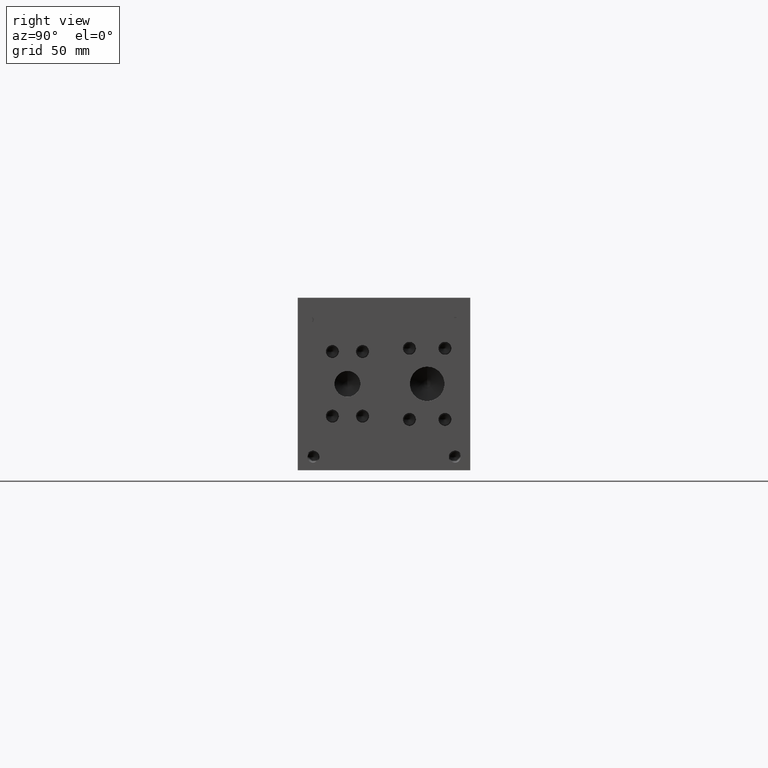
[diagram: clean part render]
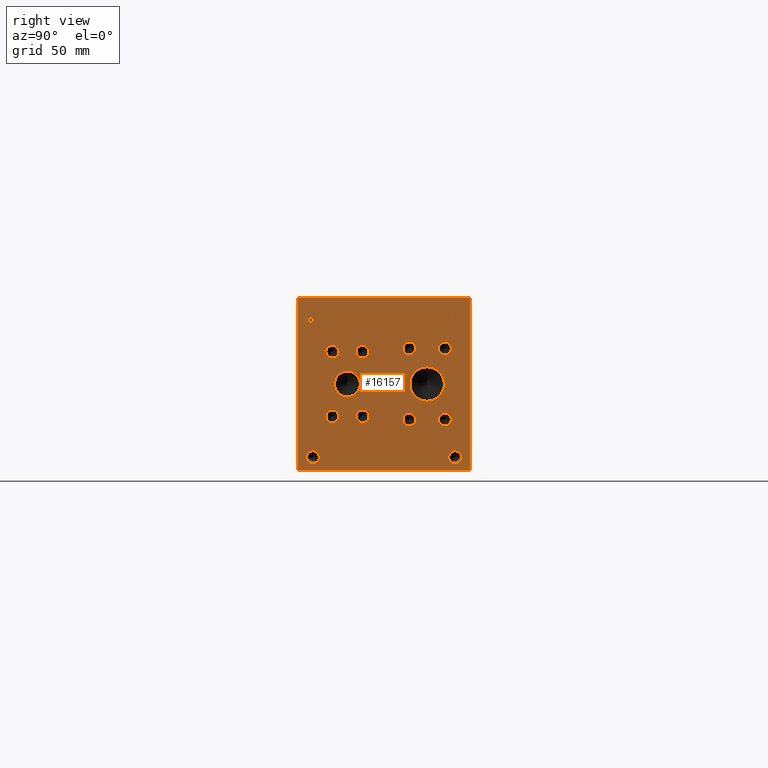
[diagram: same view with one face highlighted and labeled with its STEP entity id]
A machine part, right view. The second image highlights one B-rep face of the part: STEP entity #16157.
In plain terms, the highlighted planar face has unit normal (1, 0, 0).
Its self-contained STEP definition (entity closure, byte-faithful):
#523=CIRCLE('',#17117,9.525);
#524=CIRCLE('',#17118,9.525);
#525=CIRCLE('',#17119,4.7625);
#526=CIRCLE('',#17120,4.7625);
#527=CIRCLE('',#17121,4.7625);
#528=CIRCLE('',#17122,4.7625);
#529=CIRCLE('',#17123,4.7625);
#530=CIRCLE('',#17124,4.7625);
#531=CIRCLE('',#17125,4.7625);
#532=CIRCLE('',#17126,4.7625);
#533=CIRCLE('',#17127,4.7625);
#534=CIRCLE('',#17128,4.7625);
#535=CIRCLE('',#17129,4.7625);
#536=CIRCLE('',#17130,4.7625);
#537=CIRCLE('',#17131,4.7625);
#538=CIRCLE('',#17132,4.7625);
#539=CIRCLE('',#17133,4.7625);
#540=CIRCLE('',#17134,4.7625);
#541=CIRCLE('',#17135,12.7);
#542=CIRCLE('',#17136,12.7);
#543=CIRCLE('',#17137,4.7625);
#544=CIRCLE('',#17138,4.7625);
#545=CIRCLE('',#17139,4.7625);
#546=CIRCLE('',#17140,4.7625);
#1161=B_SPLINE_CURVE_WITH_KNOTS('',2,(#23960,#23961,#23962,#23963),
 .UNSPECIFIED.,.F.,.F.,(3,1,3),(0.,1.,2.),.UNSPECIFIED.);
#1163=B_SPLINE_CURVE_WITH_KNOTS('',2,(#23981,#23982,#23983,#23984),
 .UNSPECIFIED.,.F.,.F.,(3,1,3),(0.,1.,2.),.UNSPECIFIED.);
#1165=B_SPLINE_CURVE_WITH_KNOTS('',2,(#24030,#24031,#24032,#24033),
 .UNSPECIFIED.,.F.,.F.,(3,1,3),(0.,1.,2.),.UNSPECIFIED.);
#1167=B_SPLINE_CURVE_WITH_KNOTS('',2,(#24048,#24049,#24050,#24051),
 .UNSPECIFIED.,.F.,.F.,(3,1,3),(0.,1.,2.),.UNSPECIFIED.);
#1441=FACE_BOUND('',#2617,.T.);
#1442=FACE_BOUND('',#2618,.T.);
#1443=FACE_BOUND('',#2619,.T.);
#1444=FACE_BOUND('',#2620,.T.);
#1445=FACE_BOUND('',#2621,.T.);
#1446=FACE_BOUND('',#2622,.T.);
#1447=FACE_BOUND('',#2623,.T.);
#1448=FACE_BOUND('',#2624,.T.);
#1449=FACE_BOUND('',#2625,.T.);
#1450=FACE_BOUND('',#2626,.T.);
#1451=FACE_BOUND('',#2627,.T.);
#1452=FACE_BOUND('',#2628,.T.);
#1453=FACE_BOUND('',#2629,.T.);
#1454=FACE_BOUND('',#2630,.T.);
#1657=FACE_OUTER_BOUND('',#2616,.T.);
#2616=EDGE_LOOP('',(#11145,#11146,#11147,#11148));
#2617=EDGE_LOOP('',(#11149,#11150,#11151,#11152,#11153,#11154,#11155,#11156));
#2618=EDGE_LOOP('',(#11157,#11158));
#2619=EDGE_LOOP('',(#11159,#11160));
#2620=EDGE_LOOP('',(#11161,#11162));
#2621=EDGE_LOOP('',(#11163,#11164));
#2622=EDGE_LOOP('',(#11165,#11166));
#2623=EDGE_LOOP('',(#11167,#11168));
#2624=EDGE_LOOP('',(#11169,#11170));
#2625=EDGE_LOOP('',(#11171,#11172));
#2626=EDGE_LOOP('',(#11173,#11174));
#2627=EDGE_LOOP('',(#11175,#11176));
#2628=EDGE_LOOP('',(#11177,#11178));
#2629=EDGE_LOOP('',(#11179,#11180));
#2630=EDGE_LOOP('',(#11181,#11182,#11183,#11184,#11185,#11186,#11187,#11188,
#11189));
#3619=LINE('',#22472,#5033);
#3890=LINE('',#23810,#5304);
#3894=LINE('',#23818,#5308);
#3897=LINE('',#23824,#5311);
#3900=LINE('',#23830,#5314);
#3903=LINE('',#23836,#5317);
#3906=LINE('',#23842,#5320);
#3909=LINE('',#23848,#5323);
#3912=LINE('',#23853,#5326);
#3930=LINE('',#23993,#5344);
#3933=LINE('',#23999,#5347);
#3936=LINE('',#24005,#5350);
#3939=LINE('',#24011,#5353);
#3942=LINE('',#24017,#5356);
#3946=LINE('',#24059,#5360);
#3947=LINE('',#24061,#5361);
#3948=LINE('',#24062,#5362);
#5033=VECTOR('',#18383,10.);
#5304=VECTOR('',#18846,10.);
#5308=VECTOR('',#18852,10.);
#5311=VECTOR('',#18857,10.);
#5314=VECTOR('',#18862,10.);
#5317=VECTOR('',#18867,10.);
#5320=VECTOR('',#18872,10.);
#5323=VECTOR('',#18877,10.);
#5326=VECTOR('',#18882,10.);
#5344=VECTOR('',#18910,10.);
#5347=VECTOR('',#18915,10.);
#5350=VECTOR('',#18920,10.);
#5353=VECTOR('',#18925,10.);
#5356=VECTOR('',#18930,10.);
#5360=VECTOR('',#18938,10.);
#5361=VECTOR('',#18939,10.);
#5362=VECTOR('',#18940,10.);
#6436=VERTEX_POINT('',#22469);
#6437=VERTEX_POINT('',#22471);
#6871=VERTEX_POINT('',#23808);
#6872=VERTEX_POINT('',#23809);
#6875=VERTEX_POINT('',#23817);
#6877=VERTEX_POINT('',#23823);
#6879=VERTEX_POINT('',#23829);
#6881=VERTEX_POINT('',#23835);
#6883=VERTEX_POINT('',#23841);
#6885=VERTEX_POINT('',#23847);
#6901=VERTEX_POINT('',#23958);
#6902=VERTEX_POINT('',#23959);
#6905=VERTEX_POINT('',#23980);
#6907=VERTEX_POINT('',#23992);
#6909=VERTEX_POINT('',#23998);
#6911=VERTEX_POINT('',#24004);
#6913=VERTEX_POINT('',#24010);
#6915=VERTEX_POINT('',#24016);
#6917=VERTEX_POINT('',#24029);
#6919=VERTEX_POINT('',#24058);
#6920=VERTEX_POINT('',#24060);
#6921=VERTEX_POINT('',#24063);
#6922=VERTEX_POINT('',#24064);
#6923=VERTEX_POINT('',#24067);
#6924=VERTEX_POINT('',#24068);
#6925=VERTEX_POINT('',#24071);
#6926=VERTEX_POINT('',#24072);
#6927=VERTEX_POINT('',#24075);
#6928=VERTEX_POINT('',#24076);
#6929=VERTEX_POINT('',#24079);
#6930=VERTEX_POINT('',#24080);
#6931=VERTEX_POINT('',#24083);
#6932=VERTEX_POINT('',#24084);
#6933=VERTEX_POINT('',#24087);
#6934=VERTEX_POINT('',#24088);
#6935=VERTEX_POINT('',#24091);
#6936=VERTEX_POINT('',#24092);
#6937=VERTEX_POINT('',#24095);
#6938=VERTEX_POINT('',#24096);
#6939=VERTEX_POINT('',#24099);
#6940=VERTEX_POINT('',#24100);
#6941=VERTEX_POINT('',#24103);
#6942=VERTEX_POINT('',#24104);
#6943=VERTEX_POINT('',#24107);
#6944=VERTEX_POINT('',#24108);
#8128=EDGE_CURVE('',#6436,#6437,#3619,.T.);
#8587=EDGE_CURVE('',#6871,#6872,#3890,.T.);
#8591=EDGE_CURVE('',#6875,#6871,#3894,.T.);
#8594=EDGE_CURVE('',#6877,#6875,#3897,.T.);
#8597=EDGE_CURVE('',#6879,#6877,#3900,.T.);
#8600=EDGE_CURVE('',#6881,#6879,#3903,.T.);
#8603=EDGE_CURVE('',#6883,#6881,#3906,.T.);
#8606=EDGE_CURVE('',#6885,#6883,#3909,.T.);
#8609=EDGE_CURVE('',#6872,#6885,#3912,.T.);
#8632=EDGE_CURVE('',#6901,#6902,#1161,.T.);
#8636=EDGE_CURVE('',#6905,#6901,#1163,.T.);
#8639=EDGE_CURVE('',#6907,#6905,#3930,.T.);
#8642=EDGE_CURVE('',#6909,#6907,#3933,.T.);
#8645=EDGE_CURVE('',#6911,#6909,#3936,.T.);
#8648=EDGE_CURVE('',#6913,#6911,#3939,.T.);
#8651=EDGE_CURVE('',#6915,#6913,#3942,.T.);
#8654=EDGE_CURVE('',#6917,#6915,#1165,.T.);
#8657=EDGE_CURVE('',#6902,#6917,#1167,.T.);
#8659=EDGE_CURVE('',#6436,#6919,#3946,.T.);
#8660=EDGE_CURVE('',#6919,#6920,#3947,.T.);
#8661=EDGE_CURVE('',#6437,#6920,#3948,.T.);
#8662=EDGE_CURVE('',#6921,#6922,#523,.T.);
#8663=EDGE_CURVE('',#6922,#6921,#524,.T.);
#8664=EDGE_CURVE('',#6923,#6924,#525,.T.);
#8665=EDGE_CURVE('',#6924,#6923,#526,.T.);
#8666=EDGE_CURVE('',#6925,#6926,#527,.T.);
#8667=EDGE_CURVE('',#6926,#6925,#528,.T.);
#8668=EDGE_CURVE('',#6927,#6928,#529,.T.);
#8669=EDGE_CURVE('',#6928,#6927,#530,.T.);
#8670=EDGE_CURVE('',#6929,#6930,#531,.T.);
#8671=EDGE_CURVE('',#6930,#6929,#532,.T.);
#8672=EDGE_CURVE('',#6931,#6932,#533,.T.);
#8673=EDGE_CURVE('',#6932,#6931,#534,.T.);
#8674=EDGE_CURVE('',#6933,#6934,#535,.T.);
#8675=EDGE_CURVE('',#6934,#6933,#536,.T.);
#8676=EDGE_CURVE('',#6935,#6936,#537,.T.);
#8677=EDGE_CURVE('',#6936,#6935,#538,.T.);
#8678=EDGE_CURVE('',#6937,#6938,#539,.T.);
#8679=EDGE_CURVE('',#6938,#6937,#540,.T.);
#8680=EDGE_CURVE('',#6939,#6940,#541,.T.);
#8681=EDGE_CURVE('',#6940,#6939,#542,.T.);
#8682=EDGE_CURVE('',#6941,#6942,#543,.T.);
#8683=EDGE_CURVE('',#6942,#6941,#544,.T.);
#8684=EDGE_CURVE('',#6943,#6944,#545,.T.);
#8685=EDGE_CURVE('',#6944,#6943,#546,.T.);
#11145=ORIENTED_EDGE('',*,*,#8659,.T.);
#11146=ORIENTED_EDGE('',*,*,#8660,.T.);
#11147=ORIENTED_EDGE('',*,*,#8661,.F.);
#11148=ORIENTED_EDGE('',*,*,#8128,.F.);
#11149=ORIENTED_EDGE('',*,*,#8587,.T.);
#11150=ORIENTED_EDGE('',*,*,#8609,.T.);
#11151=ORIENTED_EDGE('',*,*,#8606,.T.);
#11152=ORIENTED_EDGE('',*,*,#8603,.T.);
#11153=ORIENTED_EDGE('',*,*,#8600,.T.);
#11154=ORIENTED_EDGE('',*,*,#8597,.T.);
#11155=ORIENTED_EDGE('',*,*,#8594,.T.);
#11156=ORIENTED_EDGE('',*,*,#8591,.T.);
#11157=ORIENTED_EDGE('',*,*,#8662,.T.);
#11158=ORIENTED_EDGE('',*,*,#8663,.T.);
#11159=ORIENTED_EDGE('',*,*,#8664,.T.);
#11160=ORIENTED_EDGE('',*,*,#8665,.T.);
#11161=ORIENTED_EDGE('',*,*,#8666,.T.);
#11162=ORIENTED_EDGE('',*,*,#8667,.T.);
#11163=ORIENTED_EDGE('',*,*,#8668,.T.);
#11164=ORIENTED_EDGE('',*,*,#8669,.T.);
#11165=ORIENTED_EDGE('',*,*,#8670,.T.);
#11166=ORIENTED_EDGE('',*,*,#8671,.T.);
#11167=ORIENTED_EDGE('',*,*,#8672,.T.);
#11168=ORIENTED_EDGE('',*,*,#8673,.T.);
#11169=ORIENTED_EDGE('',*,*,#8674,.T.);
#11170=ORIENTED_EDGE('',*,*,#8675,.T.);
#11171=ORIENTED_EDGE('',*,*,#8676,.T.);
#11172=ORIENTED_EDGE('',*,*,#8677,.T.);
#11173=ORIENTED_EDGE('',*,*,#8678,.T.);
#11174=ORIENTED_EDGE('',*,*,#8679,.T.);
#11175=ORIENTED_EDGE('',*,*,#8680,.T.);
#11176=ORIENTED_EDGE('',*,*,#8681,.T.);
#11177=ORIENTED_EDGE('',*,*,#8682,.T.);
#11178=ORIENTED_EDGE('',*,*,#8683,.T.);
#11179=ORIENTED_EDGE('',*,*,#8684,.T.);
#11180=ORIENTED_EDGE('',*,*,#8685,.T.);
#11181=ORIENTED_EDGE('',*,*,#8632,.T.);
#11182=ORIENTED_EDGE('',*,*,#8657,.T.);
#11183=ORIENTED_EDGE('',*,*,#8654,.T.);
#11184=ORIENTED_EDGE('',*,*,#8651,.T.);
#11185=ORIENTED_EDGE('',*,*,#8648,.T.);
#11186=ORIENTED_EDGE('',*,*,#8645,.T.);
#11187=ORIENTED_EDGE('',*,*,#8642,.T.);
#11188=ORIENTED_EDGE('',*,*,#8639,.T.);
#11189=ORIENTED_EDGE('',*,*,#8636,.T.);
#15158=PLANE('',#17116);
#16157=ADVANCED_FACE('',(#1657,#1441,#1442,#1443,#1444,#1445,#1446,#1447,
#1448,#1449,#1450,#1451,#1452,#1453,#1454),#15158,.T.);
#17116=AXIS2_PLACEMENT_3D('',#24057,#18936,#18937);
#17117=AXIS2_PLACEMENT_3D('',#24065,#18941,#18942);
#17118=AXIS2_PLACEMENT_3D('',#24066,#18943,#18944);
#17119=AXIS2_PLACEMENT_3D('',#24069,#18945,#18946);
#17120=AXIS2_PLACEMENT_3D('',#24070,#18947,#18948);
#17121=AXIS2_PLACEMENT_3D('',#24073,#18949,#18950);
#17122=AXIS2_PLACEMENT_3D('',#24074,#18951,#18952);
#17123=AXIS2_PLACEMENT_3D('',#24077,#18953,#18954);
#17124=AXIS2_PLACEMENT_3D('',#24078,#18955,#18956);
#17125=AXIS2_PLACEMENT_3D('',#24081,#18957,#18958);
#17126=AXIS2_PLACEMENT_3D('',#24082,#18959,#18960);
#17127=AXIS2_PLACEMENT_3D('',#24085,#18961,#18962);
#17128=AXIS2_PLACEMENT_3D('',#24086,#18963,#18964);
#17129=AXIS2_PLACEMENT_3D('',#24089,#18965,#18966);
#17130=AXIS2_PLACEMENT_3D('',#24090,#18967,#18968);
#17131=AXIS2_PLACEMENT_3D('',#24093,#18969,#18970);
#17132=AXIS2_PLACEMENT_3D('',#24094,#18971,#18972);
#17133=AXIS2_PLACEMENT_3D('',#24097,#18973,#18974);
#17134=AXIS2_PLACEMENT_3D('',#24098,#18975,#18976);
#17135=AXIS2_PLACEMENT_3D('',#24101,#18977,#18978);
#17136=AXIS2_PLACEMENT_3D('',#24102,#18979,#18980);
#17137=AXIS2_PLACEMENT_3D('',#24105,#18981,#18982);
#17138=AXIS2_PLACEMENT_3D('',#24106,#18983,#18984);
#17139=AXIS2_PLACEMENT_3D('',#24109,#18985,#18986);
#17140=AXIS2_PLACEMENT_3D('',#24110,#18987,#18988);
#18383=DIRECTION('',(0.,0.,1.));
#18846=DIRECTION('',(0.,-1.,0.));
#18852=DIRECTION('',(0.,0.,-1.));
#18857=DIRECTION('',(0.,-1.,0.));
#18862=DIRECTION('',(0.,0.,-1.));
#18867=DIRECTION('',(0.,1.,0.));
#18872=DIRECTION('',(0.,0.,1.));
#18877=DIRECTION('',(0.,-1.,0.));
#18882=DIRECTION('',(0.,0.,1.));
#18910=DIRECTION('',(0.,1.,0.));
#18915=DIRECTION('',(0.,0.,1.));
#18920=DIRECTION('',(0.,-1.,0.));
#18925=DIRECTION('',(0.,0.,-1.));
#18930=DIRECTION('',(0.,-1.,0.));
#18936=DIRECTION('center_axis',(1.,0.,0.));
#18937=DIRECTION('ref_axis',(0.,1.,0.));
#18938=DIRECTION('',(0.,1.,0.));
#18939=DIRECTION('',(0.,0.,1.));
#18940=DIRECTION('',(0.,1.,0.));
#18941=DIRECTION('center_axis',(-1.,0.,0.));
#18942=DIRECTION('ref_axis',(0.,0.,-1.));
#18943=DIRECTION('center_axis',(-1.,0.,0.));
#18944=DIRECTION('ref_axis',(0.,0.,-1.));
#18945=DIRECTION('center_axis',(-1.,0.,0.));
#18946=DIRECTION('ref_axis',(0.,1.,0.));
#18947=DIRECTION('center_axis',(-1.,0.,0.));
#18948=DIRECTION('ref_axis',(0.,1.,0.));
#18949=DIRECTION('center_axis',(-1.,0.,0.));
#18950=DIRECTION('ref_axis',(0.,1.,0.));
#18951=DIRECTION('center_axis',(-1.,0.,0.));
#18952=DIRECTION('ref_axis',(0.,1.,0.));
#18953=DIRECTION('center_axis',(-1.,0.,0.));
#18954=DIRECTION('ref_axis',(0.,1.,0.));
#18955=DIRECTION('center_axis',(-1.,0.,0.));
#18956=DIRECTION('ref_axis',(0.,1.,0.));
#18957=DIRECTION('center_axis',(-1.,0.,0.));
#18958=DIRECTION('ref_axis',(0.,1.,0.));
#18959=DIRECTION('center_axis',(-1.,0.,0.));
#18960=DIRECTION('ref_axis',(0.,1.,0.));
#18961=DIRECTION('center_axis',(-1.,0.,0.));
#18962=DIRECTION('ref_axis',(0.,1.,0.));
#18963=DIRECTION('center_axis',(-1.,0.,0.));
#18964=DIRECTION('ref_axis',(0.,1.,0.));
#18965=DIRECTION('center_axis',(-1.,0.,0.));
#18966=DIRECTION('ref_axis',(0.,1.,0.));
#18967=DIRECTION('center_axis',(-1.,0.,0.));
#18968=DIRECTION('ref_axis',(0.,1.,0.));
#18969=DIRECTION('center_axis',(-1.,0.,0.));
#18970=DIRECTION('ref_axis',(0.,1.,0.));
#18971=DIRECTION('center_axis',(-1.,0.,0.));
#18972=DIRECTION('ref_axis',(0.,1.,0.));
#18973=DIRECTION('center_axis',(-1.,0.,0.));
#18974=DIRECTION('ref_axis',(0.,1.,0.));
#18975=DIRECTION('center_axis',(-1.,0.,0.));
#18976=DIRECTION('ref_axis',(0.,1.,0.));
#18977=DIRECTION('center_axis',(-1.,0.,0.));
#18978=DIRECTION('ref_axis',(0.,0.,-1.));
#18979=DIRECTION('center_axis',(-1.,0.,0.));
#18980=DIRECTION('ref_axis',(0.,0.,-1.));
#18981=DIRECTION('center_axis',(-1.,0.,0.));
#18982=DIRECTION('ref_axis',(0.,1.,0.));
#18983=DIRECTION('center_axis',(-1.,0.,0.));
#18984=DIRECTION('ref_axis',(0.,1.,0.));
#18985=DIRECTION('center_axis',(-1.,0.,0.));
#18986=DIRECTION('ref_axis',(0.,1.,0.));
#18987=DIRECTION('center_axis',(-1.,0.,0.));
#18988=DIRECTION('ref_axis',(0.,1.,0.));
#22469=CARTESIAN_POINT('',(508.,0.,0.));
#22471=CARTESIAN_POINT('',(508.,0.,127.));
#22472=CARTESIAN_POINT('',(508.,0.,0.));
#23808=CARTESIAN_POINT('',(508.,118.062915271453,106.3625));
#23809=CARTESIAN_POINT('',(508.,117.218993079914,106.3625));
#23810=CARTESIAN_POINT('',(508.,59.0314576357265,106.3625));
#23817=CARTESIAN_POINT('',(508.,118.062915271453,111.961203319482));
#23818=CARTESIAN_POINT('',(508.,118.062915271453,55.9806016597408));
#23823=CARTESIAN_POINT('',(508.,120.193304218388,111.961203319482));
#23824=CARTESIAN_POINT('',(508.,60.096652109194,111.961203319482));
#23829=CARTESIAN_POINT('',(508.,120.193304218388,112.712499904633));
#23830=CARTESIAN_POINT('',(508.,120.193304218388,56.3562499523163));
#23835=CARTESIAN_POINT('',(508.,115.088604132978,112.712499904633));
#23836=CARTESIAN_POINT('',(508.,57.5443020664892,112.712499904633));
#23841=CARTESIAN_POINT('',(508.,115.088604132978,111.961203319482));
#23842=CARTESIAN_POINT('',(508.,115.088604132978,55.9806016597408));
#23847=CARTESIAN_POINT('',(508.,117.218993079914,111.961203319482));
#23848=CARTESIAN_POINT('',(508.,58.6094965399568,111.961203319482));
#23853=CARTESIAN_POINT('',(508.,117.218993079914,53.18125));
#23958=CARTESIAN_POINT('',(508.,11.0443172023594,112.316268143971));
#23959=CARTESIAN_POINT('',(508.,11.800759654532,110.798237372604));
#23960=CARTESIAN_POINT('Ctrl Pts',(508.,11.0443172023594,112.316268143971));
#23961=CARTESIAN_POINT('Ctrl Pts',(508.,11.3993820268486,112.074412393956));
#23962=CARTESIAN_POINT('Ctrl Pts',(508.,11.800759654532,111.328261675827));
#23963=CARTESIAN_POINT('Ctrl Pts',(508.,11.800759654532,110.798237372604));
#23980=CARTESIAN_POINT('',(508.,9.3822021543883,112.712499904633));
#23981=CARTESIAN_POINT('Ctrl Pts',(508.,9.3822021543883,112.712499904633));
#23982=CARTESIAN_POINT('Ctrl Pts',(508.,9.94824752676236,112.712499904633));
#23983=CARTESIAN_POINT('Ctrl Pts',(508.,10.740711048086,112.527248691856));
#23984=CARTESIAN_POINT('Ctrl Pts',(508.,11.0443172023594,112.316268143971));
#23992=CARTESIAN_POINT('',(508.,7.78698337769779,112.712499904633));
#23993=CARTESIAN_POINT('',(508.,3.89349168884889,112.712499904633));
#23998=CARTESIAN_POINT('',(508.,7.78698337769779,106.3625));
#23999=CARTESIAN_POINT('',(508.,7.78698337769779,53.18125));
#24004=CARTESIAN_POINT('',(508.,8.63090556923729,106.3625));
#24005=CARTESIAN_POINT('',(508.,4.31545278461864,106.3625));
#24010=CARTESIAN_POINT('',(508.,8.63090556923729,108.729598829928));
#24011=CARTESIAN_POINT('',(508.,8.63090556923729,54.3647994149639));
#24016=CARTESIAN_POINT('',(508.,9.34618108523723,108.729598829928));
#24017=CARTESIAN_POINT('',(508.,4.67309054261861,108.729598829928));
#24029=CARTESIAN_POINT('',(508.,11.2450060162011,109.38826980869));
#24030=CARTESIAN_POINT('Ctrl Pts',(508.,11.2450060162011,109.38826980869));
#24031=CARTESIAN_POINT('Ctrl Pts',(508.,10.9156705268198,109.064080186331));
#24032=CARTESIAN_POINT('Ctrl Pts',(508.,10.0254355320861,108.729598829928));
#24033=CARTESIAN_POINT('Ctrl Pts',(508.,9.34618108523723,108.729598829928));
#24048=CARTESIAN_POINT('Ctrl Pts',(508.,11.800759654532,110.798237372604));
#24049=CARTESIAN_POINT('Ctrl Pts',(508.,11.800759654532,110.386568010877));
#24050=CARTESIAN_POINT('Ctrl Pts',(508.,11.5074452343018,109.64556315977));
#24051=CARTESIAN_POINT('Ctrl Pts',(508.,11.2450060162011,109.38826980869));
#24057=CARTESIAN_POINT('Origin',(508.,0.,0.));
#24058=CARTESIAN_POINT('',(508.,127.,0.));
#24059=CARTESIAN_POINT('',(508.,0.,0.));
#24060=CARTESIAN_POINT('',(508.,127.,127.));
#24061=CARTESIAN_POINT('',(508.,127.,0.));
#24062=CARTESIAN_POINT('',(508.,0.,127.));
#24063=CARTESIAN_POINT('',(508.,36.5252,53.975));
#24064=CARTESIAN_POINT('',(508.,36.5252,73.025));
#24065=CARTESIAN_POINT('Origin',(508.,36.5252,63.5));
#24066=CARTESIAN_POINT('Origin',(508.,36.5252,63.5));
#24067=CARTESIAN_POINT('',(508.,113.0935,89.6874));
#24068=CARTESIAN_POINT('',(508.,103.5685,89.6874));
#24069=CARTESIAN_POINT('Origin',(508.,108.331,89.6874));
#24070=CARTESIAN_POINT('Origin',(508.,108.331,89.6874));
#24071=CARTESIAN_POINT('',(508.,86.9315,37.3126));
#24072=CARTESIAN_POINT('',(508.,77.4065,37.3126));
#24073=CARTESIAN_POINT('Origin',(508.,82.169,37.3126));
#24074=CARTESIAN_POINT('Origin',(508.,82.169,37.3126));
#24075=CARTESIAN_POINT('',(508.,52.3875,39.7002));
#24076=CARTESIAN_POINT('',(508.,42.8625,39.7002));
#24077=CARTESIAN_POINT('Origin',(508.,47.625,39.7002));
#24078=CARTESIAN_POINT('Origin',(508.,47.625,39.7002));
#24079=CARTESIAN_POINT('',(508.,30.1879,87.2998));
#24080=CARTESIAN_POINT('',(508.,20.6629,87.2998));
#24081=CARTESIAN_POINT('Origin',(508.,25.4254,87.2998));
#24082=CARTESIAN_POINT('Origin',(508.,25.4254,87.2998));
#24083=CARTESIAN_POINT('',(508.,30.1879,39.7002));
#24084=CARTESIAN_POINT('',(508.,20.6629,39.7002));
#24085=CARTESIAN_POINT('Origin',(508.,25.4254,39.7002));
#24086=CARTESIAN_POINT('Origin',(508.,25.4254,39.7002));
#24087=CARTESIAN_POINT('',(508.,52.3875,87.2998));
#24088=CARTESIAN_POINT('',(508.,42.8625,87.2998));
#24089=CARTESIAN_POINT('Origin',(508.,47.625,87.2998));
#24090=CARTESIAN_POINT('Origin',(508.,47.625,87.2998));
#24091=CARTESIAN_POINT('',(508.,113.0935,37.3126));
#24092=CARTESIAN_POINT('',(508.,103.5685,37.3126));
#24093=CARTESIAN_POINT('Origin',(508.,108.331,37.3126));
#24094=CARTESIAN_POINT('Origin',(508.,108.331,37.3126));
#24095=CARTESIAN_POINT('',(508.,86.9315,89.6874));
#24096=CARTESIAN_POINT('',(508.,77.4065,89.6874));
#24097=CARTESIAN_POINT('Origin',(508.,82.169,89.6874));
#24098=CARTESIAN_POINT('Origin',(508.,82.169,89.6874));
#24099=CARTESIAN_POINT('',(508.,95.25,50.8));
#24100=CARTESIAN_POINT('',(508.,95.25,76.2));
#24101=CARTESIAN_POINT('Origin',(508.,95.25,63.5));
#24102=CARTESIAN_POINT('Origin',(508.,95.25,63.5));
#24103=CARTESIAN_POINT('',(508.,120.6627,9.525));
#24104=CARTESIAN_POINT('',(508.,111.1377,9.525));
#24105=CARTESIAN_POINT('Origin',(508.,115.9002,9.525));
#24106=CARTESIAN_POINT('Origin',(508.,115.9002,9.525));
#24107=CARTESIAN_POINT('',(508.,15.8877,9.525));
#24108=CARTESIAN_POINT('',(508.,6.3627,9.525));
#24109=CARTESIAN_POINT('Origin',(508.,11.1252,9.525));
#24110=CARTESIAN_POINT('Origin',(508.,11.1252,9.525));